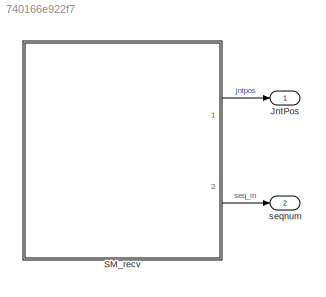
MODEL slx_740166e922f7
KIND model
CONFIG AbsTol = auto
CONFIG EnableMultiTasking = off
CONFIG FixedStep = auto
CONFIG MaxStep = auto
CONFIG MinStep = auto
CONFIG RelTol = 1e-3
CONFIG SampleTimeConstraint = Unconstrained
CONFIG SolverName = FixedStepAuto
CONFIG StartTime = 0.0
CONFIG StopTime = inf
BLOCK [Outport] JntPos
  VectorParamsAs1DForOutWhenUnconnected = off
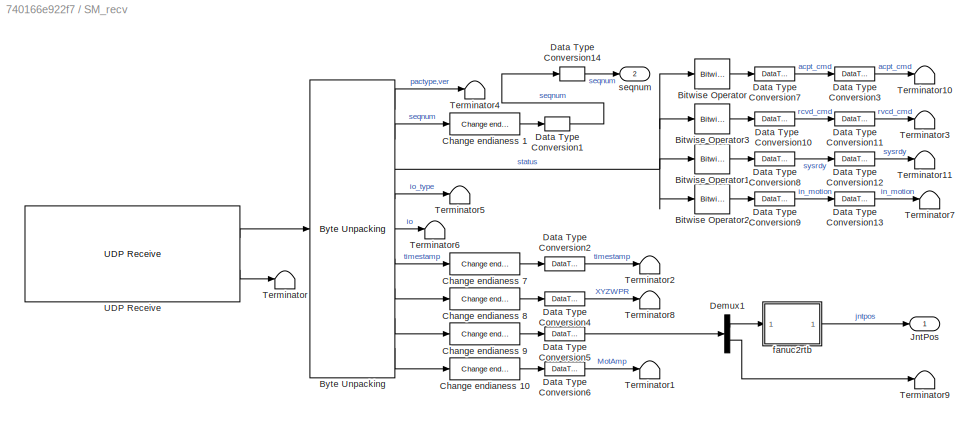
BLOCK [SubSystem] SM_recv
  Ports = [0, 2]
  Priority = 1
  RequestExecContextInheritance = off
BLOCK [Reference] SM_recv/Bitwise Operator  REF=simulink/Logic and Bit
Operations/Bitwise
Operator
  Ports = [1, 1]
  SourceBlock = simulink/Logic and Bit\nOperations/Bitwise\nOperator
  SourceProductBaseCode = SL
  SourceType = Bitwise Operator
BLOCK [Reference] SM_recv/Bitwise Operator1  REF=simulink/Logic and Bit
Operations/Bitwise
Operator
  Ports = [1, 1]
  SourceBlock = simulink/Logic and Bit\nOperations/Bitwise\nOperator
  SourceProductBaseCode = SL
  SourceType = Bitwise Operator
BLOCK [Reference] SM_recv/Bitwise Operator2  REF=simulink/Logic and Bit
Operations/Bitwise
Operator
  Ports = [1, 1]
  SourceBlock = simulink/Logic and Bit\nOperations/Bitwise\nOperator
  SourceProductBaseCode = SL
  SourceType = Bitwise Operator
BLOCK [Reference] SM_recv/Bitwise Operator3  REF=simulink/Logic and Bit
Operations/Bitwise
Operator
  Ports = [1, 1]
  SourceBlock = simulink/Logic and Bit\nOperations/Bitwise\nOperator
  SourceProductBaseCode = SL
  SourceType = Bitwise Operator
BLOCK [Reference] SM_recv/Byte Unpacking   REF=slrealtimeutilitieslib/Byte Unpacking
  Ports = [1, 9]
  Priority = 4
  SourceBlock = slrealtimeutilitieslib/Byte Unpacking
  SourceProductBaseCode = XP
  SourceType = slreraltimebytepacking
BLOCK [Reference] SM_recv/Change endianess 1  REF=slrealtimesharedmemorylib/Change endianess
  Ports = [1, 1]
  SourceBlock = slrealtimesharedmemorylib/Change endianess
  SourceProductBaseCode = XP
  SourceType = slreverseendian
BLOCK [Reference] SM_recv/Change endianess 10  REF=slrealtimesharedmemorylib/Change endianess
  Ports = [1, 1]
  SourceBlock = slrealtimesharedmemorylib/Change endianess
  SourceProductBaseCode = XP
  SourceType = slreverseendian
BLOCK [Reference] SM_recv/Change endianess 7  REF=slrealtimesharedmemorylib/Change endianess
  Ports = [1, 1]
  Priority = 15
  SourceBlock = slrealtimesharedmemorylib/Change endianess
  SourceProductBaseCode = XP
  SourceType = slreverseendian
BLOCK [Reference] SM_recv/Change endianess 8  REF=slrealtimesharedmemorylib/Change endianess
  Ports = [1, 1]
  SourceBlock = slrealtimesharedmemorylib/Change endianess
  SourceProductBaseCode = XP
  SourceType = slreverseendian
BLOCK [Reference] SM_recv/Change endianess 9  REF=slrealtimesharedmemorylib/Change endianess
  Ports = [1, 1]
  SourceBlock = slrealtimesharedmemorylib/Change endianess
  SourceProductBaseCode = XP
  SourceType = slreverseendian
BLOCK [DataTypeConversion] SM_recv/Data Type Conversion1
  OutDataTypeStr = uint32
  RndMeth = Floor
  SaturateOnIntegerOverflow = off
BLOCK [DataTypeConversion] SM_recv/Data Type Conversion10
  OutDataTypeStr = boolean
  RndMeth = Floor
  SaturateOnIntegerOverflow = off
BLOCK [DataTypeConversion] SM_recv/Data Type Conversion11
  OutDataTypeStr = double
  RndMeth = Floor
  SaturateOnIntegerOverflow = off
BLOCK [DataTypeConversion] SM_recv/Data Type Conversion12
  OutDataTypeStr = double
  RndMeth = Floor
  SaturateOnIntegerOverflow = off
BLOCK [DataTypeConversion] SM_recv/Data Type Conversion13
  OutDataTypeStr = double
  RndMeth = Floor
  SaturateOnIntegerOverflow = off
BLOCK [DataTypeConversion] SM_recv/Data Type Conversion14
  OutDataTypeStr = double
  RndMeth = Floor
  SaturateOnIntegerOverflow = off
BLOCK [DataTypeConversion] SM_recv/Data Type Conversion2
  OutDataTypeStr = uint32
  RndMeth = Floor
  SaturateOnIntegerOverflow = off
BLOCK [DataTypeConversion] SM_recv/Data Type Conversion3
  OutDataTypeStr = double
  RndMeth = Floor
  SaturateOnIntegerOverflow = off
BLOCK [DataTypeConversion] SM_recv/Data Type Conversion4
  OutDataTypeStr = double
  RndMeth = Floor
  SaturateOnIntegerOverflow = off
BLOCK [DataTypeConversion] SM_recv/Data Type Conversion5
  OutDataTypeStr = double
  RndMeth = Floor
  SaturateOnIntegerOverflow = off
BLOCK [DataTypeConversion] SM_recv/Data Type Conversion6
  OutDataTypeStr = double
  RndMeth = Floor
  SaturateOnIntegerOverflow = off
BLOCK [DataTypeConversion] SM_recv/Data Type Conversion7
  OutDataTypeStr = boolean
  RndMeth = Floor
  SaturateOnIntegerOverflow = off
BLOCK [DataTypeConversion] SM_recv/Data Type Conversion8
  OutDataTypeStr = boolean
  RndMeth = Floor
  SaturateOnIntegerOverflow = off
BLOCK [DataTypeConversion] SM_recv/Data Type Conversion9
  OutDataTypeStr = boolean
  RndMeth = Floor
  SaturateOnIntegerOverflow = off
BLOCK [Demux] SM_recv/Demux1
  Outputs = [6,3]
  Ports = [1, 2]
BLOCK [Outport] SM_recv/JntPos
  VectorParamsAs1DForOutWhenUnconnected = off
BLOCK [Terminator] SM_recv/Terminator
BLOCK [Terminator] SM_recv/Terminator1
BLOCK [Terminator] SM_recv/Terminator10
BLOCK [Terminator] SM_recv/Terminator11
BLOCK [Terminator] SM_recv/Terminator2
BLOCK [Terminator] SM_recv/Terminator3
BLOCK [Terminator] SM_recv/Terminator4
BLOCK [Terminator] SM_recv/Terminator5
BLOCK [Terminator] SM_recv/Terminator6
BLOCK [Terminator] SM_recv/Terminator7
BLOCK [Terminator] SM_recv/Terminator8
BLOCK [Terminator] SM_recv/Terminator9
BLOCK [Reference] SM_recv/UDP Receive  REF=slrealtimeiplib/UDP Receive
  Ports = [0, 2]
  Priority = 3
  SourceBlock = slrealtimeiplib/UDP Receive
  SourceProductBaseCode = XP
  SourceType = slrealtimeudpreceive
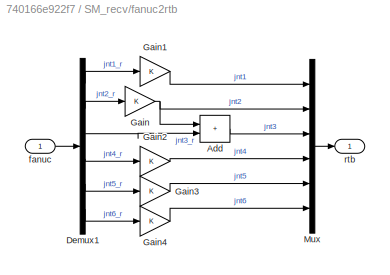
BLOCK [SubSystem] SM_recv/fanuc2rtb
  Ports = [1, 1]
  RequestExecContextInheritance = off
BLOCK [Sum] SM_recv/fanuc2rtb/Add
  IconShape = rectangular
  Ports = [2, 1]
BLOCK [Demux] SM_recv/fanuc2rtb/Demux1
  Outputs = 6
  Ports = [1, 6]
BLOCK [Gain] SM_recv/fanuc2rtb/Gain
BLOCK [Gain] SM_recv/fanuc2rtb/Gain1
BLOCK [Gain] SM_recv/fanuc2rtb/Gain2
BLOCK [Gain] SM_recv/fanuc2rtb/Gain3
BLOCK [Gain] SM_recv/fanuc2rtb/Gain4
BLOCK [Mux] SM_recv/fanuc2rtb/Mux
  DisplayOption = bar
  Inputs = 6
  Ports = [6, 1]
BLOCK [Inport] SM_recv/fanuc2rtb/fanuc
BLOCK [Outport] SM_recv/fanuc2rtb/rtb
  VectorParamsAs1DForOutWhenUnconnected = off
BLOCK [Outport] SM_recv/seqnum
  Port = 2
  VectorParamsAs1DForOutWhenUnconnected = off
BLOCK [Outport] seqnum
  Port = 2
  VectorParamsAs1DForOutWhenUnconnected = off
LINE SM_recv/Bitwise Operator1:1 -> SM_recv/Data Type Conversion8:1
LINE SM_recv/Bitwise Operator2:1 -> SM_recv/Data Type Conversion9:1
LINE SM_recv/Bitwise Operator3:1 -> SM_recv/Data Type Conversion10:1
LINE SM_recv/Bitwise Operator:1 -> SM_recv/Data Type Conversion7:1
LINE SM_recv/Byte Unpacking :1 -> SM_recv/Terminator4:1
LINE SM_recv/Byte Unpacking :2 -> SM_recv/Change endianess 1:1
NET SM_recv/Byte Unpacking :3 -> SM_recv/Bitwise Operator1:1, SM_recv/Bitwise Operator2:1, SM_recv/Bitwise Operator3:1, SM_recv/Bitwise Operator:1
LINE SM_recv/Byte Unpacking :4 -> SM_recv/Terminator5:1
LINE SM_recv/Byte Unpacking :5 -> SM_recv/Terminator6:1
LINE SM_recv/Byte Unpacking :6 -> SM_recv/Change endianess 7:1
LINE SM_recv/Byte Unpacking :7 -> SM_recv/Change endianess 8:1
LINE SM_recv/Byte Unpacking :8 -> SM_recv/Change endianess 9:1
LINE SM_recv/Byte Unpacking :9 -> SM_recv/Change endianess 10:1
LINE SM_recv/Change endianess 10:1 -> SM_recv/Data Type Conversion6:1
LINE SM_recv/Change endianess 1:1 -> SM_recv/Data Type Conversion1:1
LINE SM_recv/Change endianess 7:1 -> SM_recv/Data Type Conversion2:1
LINE SM_recv/Change endianess 8:1 -> SM_recv/Data Type Conversion4:1
LINE SM_recv/Change endianess 9:1 -> SM_recv/Data Type Conversion5:1
LINE SM_recv/Data Type Conversion10:1 -> SM_recv/Data Type Conversion11:1
LINE SM_recv/Data Type Conversion11:1 -> SM_recv/Terminator3:1
LINE SM_recv/Data Type Conversion12:1 -> SM_recv/Terminator11:1
LINE SM_recv/Data Type Conversion13:1 -> SM_recv/Terminator7:1
LINE SM_recv/Data Type Conversion14:1 -> SM_recv/seqnum:1
LINE SM_recv/Data Type Conversion1:1 -> SM_recv/Data Type Conversion14:1
LINE SM_recv/Data Type Conversion2:1 -> SM_recv/Terminator2:1
LINE SM_recv/Data Type Conversion3:1 -> SM_recv/Terminator10:1
LINE SM_recv/Data Type Conversion4:1 -> SM_recv/Terminator8:1
LINE SM_recv/Data Type Conversion5:1 -> SM_recv/Demux1:1
LINE SM_recv/Data Type Conversion6:1 -> SM_recv/Terminator1:1
LINE SM_recv/Data Type Conversion7:1 -> SM_recv/Data Type Conversion3:1
LINE SM_recv/Data Type Conversion8:1 -> SM_recv/Data Type Conversion12:1
LINE SM_recv/Data Type Conversion9:1 -> SM_recv/Data Type Conversion13:1
LINE SM_recv/Demux1:1 -> SM_recv/fanuc2rtb:1
LINE SM_recv/Demux1:2 -> SM_recv/Terminator9:1
LINE SM_recv/UDP Receive:1 -> SM_recv/Byte Unpacking :1
LINE SM_recv/UDP Receive:2 -> SM_recv/Terminator:1
LINE SM_recv/fanuc2rtb/Add:1 -> SM_recv/fanuc2rtb/Mux:3
LINE SM_recv/fanuc2rtb/Demux1:1 -> SM_recv/fanuc2rtb/Gain1:1
LINE SM_recv/fanuc2rtb/Demux1:2 -> SM_recv/fanuc2rtb/Gain:1
LINE SM_recv/fanuc2rtb/Demux1:3 -> SM_recv/fanuc2rtb/Add:2
LINE SM_recv/fanuc2rtb/Demux1:4 -> SM_recv/fanuc2rtb/Gain2:1
LINE SM_recv/fanuc2rtb/Demux1:5 -> SM_recv/fanuc2rtb/Gain3:1
LINE SM_recv/fanuc2rtb/Demux1:6 -> SM_recv/fanuc2rtb/Gain4:1
LINE SM_recv/fanuc2rtb/Gain1:1 -> SM_recv/fanuc2rtb/Mux:1
LINE SM_recv/fanuc2rtb/Gain2:1 -> SM_recv/fanuc2rtb/Mux:4
LINE SM_recv/fanuc2rtb/Gain3:1 -> SM_recv/fanuc2rtb/Mux:5
LINE SM_recv/fanuc2rtb/Gain4:1 -> SM_recv/fanuc2rtb/Mux:6
NET SM_recv/fanuc2rtb/Gain:1 -> SM_recv/fanuc2rtb/Add:1, SM_recv/fanuc2rtb/Mux:2
LINE SM_recv/fanuc2rtb/Mux:1 -> SM_recv/fanuc2rtb/rtb:1
LINE SM_recv/fanuc2rtb/fanuc:1 -> SM_recv/fanuc2rtb/Demux1:1
LINE SM_recv/fanuc2rtb:1 -> SM_recv/JntPos:1
LINE SM_recv:1 -> JntPos:1
LINE SM_recv:2 -> seqnum:1
note: NET lines group one-source signal fan-out (src -> all destinations, sorted); 1:1 wires keep LINE
